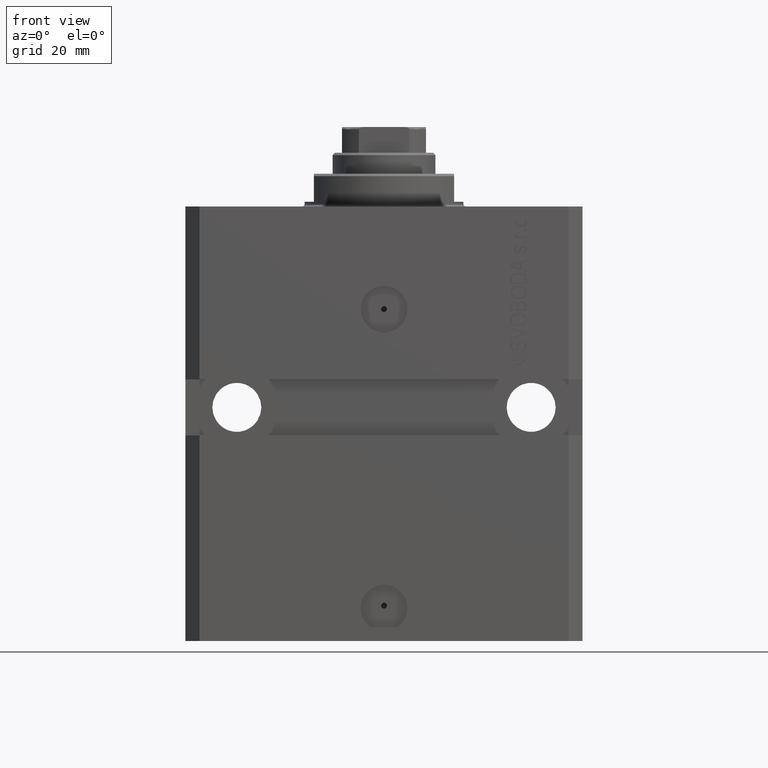
[diagram: clean part render]
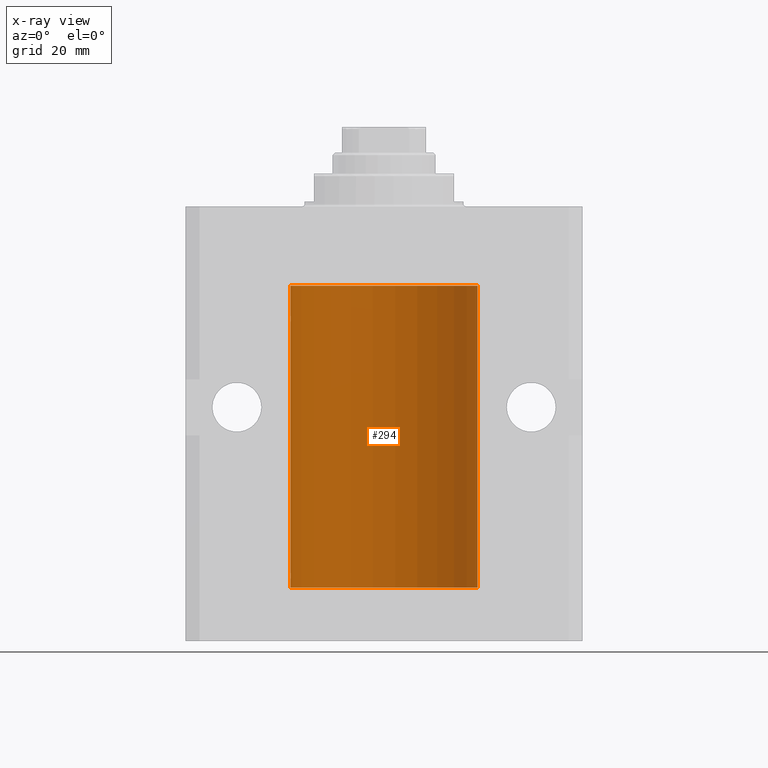
[diagram: x-ray — body ghosted, one internal face saturated and labeled with its STEP entity id]
A machine part, front view, then the same camera in x-ray: the body is ghosted and one INTERNAL B-rep face — a face not visible from any outside direction — is saturated and labeled: STEP entity #294.
In plain terms, the highlighted cylindrical surface (partial cylindrical patch) has radius 20 mm, axis along (0, 0, 1).
Its self-contained STEP definition (entity closure, byte-faithful):
#83 = CARTESIAN_POINT ( 'NONE',  ( -20.00000000000010303, 3.580159286679549072E-13, -79.62500000000332534 ) ) ;
#294 = ADVANCED_FACE ( 'NONE', ( #26959 ), #12550, .F. ) ;
#499 = CARTESIAN_POINT ( 'NONE',  ( -19.99638934703457238, 0.3843678041337651452, -78.50046362978099523 ) ) ;
#693 = ORIENTED_EDGE ( 'NONE', *, *, #28487, .F. ) ;
#733 = VECTOR ( 'NONE', #13695, 1000.000000000000000 ) ;
#1073 = CARTESIAN_POINT ( 'NONE',  ( -19.99638934703457593, 0.3843678041337688644, -23.50046362978100944 ) ) ;
#2619 = EDGE_LOOP ( 'NONE', ( #32919, #24314, #47103, #9577, #693, #16846, #25695, #5067 ) ) ;
#3549 = DIRECTION ( 'NONE',  ( 0.000000000000000000, 0.000000000000000000, 1.000000000000000000 ) ) ;
#4164 = VECTOR ( 'NONE', #21241, 1000.000000000000000 ) ;
#4528 = CARTESIAN_POINT ( 'NONE',  ( 20.00000000000000000, 0.000000000000000000, -17.00000000000000000 ) ) ;
#4810 = CARTESIAN_POINT ( 'NONE',  ( -20.00000000000010303, 3.580159286679549072E-13, -79.62500000000332534 ) ) ;
#5047 = CARTESIAN_POINT ( 'NONE',  ( -19.99253506710754991, 0.5587120480776742726, -79.32511620830248944 ) ) ;
#5067 = ORIENTED_EDGE ( 'NONE', *, *, #45554, .T. ) ;
#5086 = EDGE_CURVE ( 'NONE', #18321, #38773, #11505, .T. ) ;
#5359 = DIRECTION ( 'NONE',  ( -0.000000000000000000, -0.000000000000000000, 1.000000000000000000 ) ) ;
#6259 = AXIS2_PLACEMENT_3D ( 'NONE', #38675, #8636, #16799 ) ;
#8173 = CARTESIAN_POINT ( 'NONE',  ( -19.99023380173166231, 0.6249420416828449509, -78.83670793056396064 ) ) ;
#8636 = DIRECTION ( 'NONE',  ( 0.000000000000000000, 0.000000000000000000, 1.000000000000000000 ) ) ;
#8654 = CARTESIAN_POINT ( 'NONE',  ( -20.00000000000000355, 0.1631688615953343080, -79.62499999999984368 ) ) ;
#8774 = CARTESIAN_POINT ( 'NONE',  ( -19.99766197842594906, 0.3150331617867667688, -23.45402070102505476 ) ) ;
#9577 = ORIENTED_EDGE ( 'NONE', *, *, #12407, .T. ) ;
#10434 = CARTESIAN_POINT ( 'NONE',  ( 20.00000000000000000, 0.000000000000000000, -81.59999999999999432 ) ) ;
#11505 = LINE ( 'NONE', #22320, #13562 ) ;
#12407 = EDGE_CURVE ( 'NONE', #41874, #44123, #25979, .T. ) ;
#12550 = CYLINDRICAL_SURFACE ( 'NONE', #32595, 20.00000000000000000 ) ;
#13562 = VECTOR ( 'NONE', #29541, 1000.000000000000000 ) ;
#13695 = DIRECTION ( 'NONE',  ( -0.000000000000000000, -0.000000000000000000, 1.000000000000000000 ) ) ;
#16799 = DIRECTION ( 'NONE',  ( 1.000000000000000000, 0.000000000000000000, 0.000000000000000000 ) ) ;
#16846 = ORIENTED_EDGE ( 'NONE', *, *, #35837, .T. ) ;
#17700 = VECTOR ( 'NONE', #5359, 1000.000000000000000 ) ;
#18321 = VERTEX_POINT ( 'NONE', #28456 ) ;
#19332 = CARTESIAN_POINT ( 'NONE',  ( -20.00000000000000000, 2.449293598294706513E-15, -17.00000000000000000 ) ) ;
#20481 = CARTESIAN_POINT ( 'NONE',  ( -20.00000000000000000, 2.449293598294706513E-15, -81.59999999999999432 ) ) ;
#21241 = DIRECTION ( 'NONE',  ( -0.000000000000000000, -0.000000000000000000, 1.000000000000000000 ) ) ;
#21434 = EDGE_CURVE ( 'NONE', #43467, #32852, #46228, .T. ) ;
#22320 = CARTESIAN_POINT ( 'NONE',  ( -20.00000000000000000, 2.449293598294706513E-15, -81.59999999999999432 ) ) ;
#22955 = CARTESIAN_POINT ( 'NONE',  ( -19.99023018003212471, 0.6250578794725500931, -24.16284809704970371 ) ) ;
#23425 = CARTESIAN_POINT ( 'NONE',  ( -19.99023380173166231, 0.6249420416828462832, -23.83670793056396064 ) ) ;
#23832 = CARTESIAN_POINT ( 'NONE',  ( 0.000000000000000000, 0.000000000000000000, -81.59999999999999432 ) ) ;
#24210 = EDGE_CURVE ( 'NONE', #43516, #43467, #40065, .T. ) ;
#24314 = ORIENTED_EDGE ( 'NONE', *, *, #24210, .F. ) ;
#24378 = LINE ( 'NONE', #10434, #4164 ) ;
#25178 = DIRECTION ( 'NONE',  ( 1.000000000000000000, 0.000000000000000000, 0.000000000000000000 ) ) ;
#25695 = ORIENTED_EDGE ( 'NONE', *, *, #5086, .F. ) ;
#25979 = CIRCLE ( 'NONE', #43663, 20.00000000000000000 ) ;
#26559 = CARTESIAN_POINT ( 'NONE',  ( -19.99999999999999645, 0.08259581631026780002, -23.37500000000000000 ) ) ;
#26671 = CARTESIAN_POINT ( 'NONE',  ( -20.00000000000000000, -1.124177324826063808E-14, -78.37500000000000000 ) ) ;
#26959 = FACE_OUTER_BOUND ( 'NONE', #2619, .T. ) ;
#27274 = CARTESIAN_POINT ( 'NONE',  ( -20.00000000000000000, -2.867584836844214272E-15, -23.37500000000000000 ) ) ;
#28107 = CARTESIAN_POINT ( 'NONE',  ( -20.00000000000000000, 2.449293598294706513E-15, -81.59999999999999432 ) ) ;
#28456 = CARTESIAN_POINT ( 'NONE',  ( -20.00000000000000000, -1.124177324826063808E-14, -78.37500000000000000 ) ) ;
#28487 = EDGE_CURVE ( 'NONE', #35707, #44123, #46405, .T. ) ;
#29453 = CARTESIAN_POINT ( 'NONE',  ( 20.00000000000000000, 0.000000000000000000, -81.59999999999999432 ) ) ;
#29541 = DIRECTION ( 'NONE',  ( -0.000000000000000000, -0.000000000000000000, 1.000000000000000000 ) ) ;
#29829 = CARTESIAN_POINT ( 'NONE',  ( -19.99256581701871838, 0.5573276956901996870, -78.67348565770949165 ) ) ;
#31382 = CARTESIAN_POINT ( 'NONE',  ( -20.00000000000000000, 2.449293598294706513E-15, -81.59999999999999432 ) ) ;
#32595 = AXIS2_PLACEMENT_3D ( 'NONE', #23832, #41644, #45254 ) ;
#32852 = VERTEX_POINT ( 'NONE', #83 ) ;
#32919 = ORIENTED_EDGE ( 'NONE', *, *, #21434, .F. ) ;
#33424 = CARTESIAN_POINT ( 'NONE',  ( -19.99999999999999289, 0.08259581631026131909, -78.37499999999998579 ) ) ;
#33655 = CARTESIAN_POINT ( 'NONE',  ( -19.99769349528941831, 0.3253804398728615266, -79.55855820727680339 ) ) ;
#34241 = CARTESIAN_POINT ( 'NONE',  ( -19.99769349528941120, 0.3253804398728645242, -24.55855820727680339 ) ) ;
#34958 = CARTESIAN_POINT ( 'NONE',  ( -19.99256581701871482, 0.5573276956902001311, -23.67348565770948809 ) ) ;
#35203 = B_SPLINE_CURVE_WITH_KNOTS ( 'NONE', 3,
 ( #26671, #33424, #37982, #37745, #499, #29829, #8173, #37276, #5047, #33655, #8654, #4810 ),
 .UNSPECIFIED., .F., .F.,
 ( 4, 2, 2, 2, 2, 4 ),
 ( 1.522880481566060999E-18, 0.0002442693137305179392, 0.0004885386274610343605, 0.0009770772549220966934, 0.001465615882383158918, 0.001954154509844221576 ),
 .UNSPECIFIED. ) ;
#35707 = VERTEX_POINT ( 'NONE', #43673 ) ;
#35837 = EDGE_CURVE ( 'NONE', #35707, #38773, #39829, .T. ) ;
#37276 = CARTESIAN_POINT ( 'NONE',  ( -19.99023018003212471, 0.6250578794725522025, -79.16284809704971792 ) ) ;
#37622 = CARTESIAN_POINT ( 'NONE',  ( -20.00000000000010303, 3.580159278407742946E-13, -24.62500000000332889 ) ) ;
#37745 = CARTESIAN_POINT ( 'NONE',  ( -19.99766197842594551, 0.3150331617867603295, -78.45402070102504410 ) ) ;
#37982 = CARTESIAN_POINT ( 'NONE',  ( -19.99947377218718003, 0.1636439183262797525, -78.39126364004653169 ) ) ;
#38675 = CARTESIAN_POINT ( 'NONE',  ( 0.000000000000000000, 0.000000000000000000, -81.59999999999999432 ) ) ;
#38773 = VERTEX_POINT ( 'NONE', #46732 ) ;
#39829 = B_SPLINE_CURVE_WITH_KNOTS ( 'NONE', 3,
 ( #27274, #26559, #41242, #8774, #1073, #34958, #23425, #22955, #45334, #34241, #41959, #37622 ),
 .UNSPECIFIED., .F., .F.,
 ( 4, 2, 2, 2, 2, 4 ),
 ( 5.848927291235706941E-19, 0.0002442693137305304075, 0.0004885386274610601645, 0.0009770772549221123059, 0.001465615882383164339, 0.001954154509844215938 ),
 .UNSPECIFIED. ) ;
#40065 = CIRCLE ( 'NONE', #6259, 20.00000000000000000 ) ;
#40322 = CARTESIAN_POINT ( 'NONE',  ( 0.000000000000000000, 0.000000000000000000, -17.00000000000000000 ) ) ;
#41242 = CARTESIAN_POINT ( 'NONE',  ( -19.99947377218718714, 0.1636439183262877461, -23.39126364004656011 ) ) ;
#41644 = DIRECTION ( 'NONE',  ( -0.000000000000000000, -0.000000000000000000, 1.000000000000000000 ) ) ;
#41874 = VERTEX_POINT ( 'NONE', #4528 ) ;
#41959 = CARTESIAN_POINT ( 'NONE',  ( -20.00000000000000000, 0.1631688615953320320, -24.62499999999985434 ) ) ;
#43467 = VERTEX_POINT ( 'NONE', #31382 ) ;
#43516 = VERTEX_POINT ( 'NONE', #29453 ) ;
#43663 = AXIS2_PLACEMENT_3D ( 'NONE', #40322, #3549, #25178 ) ;
#43673 = CARTESIAN_POINT ( 'NONE',  ( -20.00000000000000000, -2.867584836844214272E-15, -23.37500000000000000 ) ) ;
#44123 = VERTEX_POINT ( 'NONE', #19332 ) ;
#45254 = DIRECTION ( 'NONE',  ( 1.000000000000000000, 0.000000000000000000, 0.000000000000000000 ) ) ;
#45334 = CARTESIAN_POINT ( 'NONE',  ( -19.99253506710754991, 0.5587120480776751608, -24.32511620830248589 ) ) ;
#45554 = EDGE_CURVE ( 'NONE', #18321, #32852, #35203, .T. ) ;
#46228 = LINE ( 'NONE', #20481, #17700 ) ;
#46405 = LINE ( 'NONE', #28107, #733 ) ;
#46469 = EDGE_CURVE ( 'NONE', #43516, #41874, #24378, .T. ) ;
#46732 = CARTESIAN_POINT ( 'NONE',  ( -20.00000000000010303, 3.580159278407742946E-13, -24.62500000000332889 ) ) ;
#47103 = ORIENTED_EDGE ( 'NONE', *, *, #46469, .T. ) ;